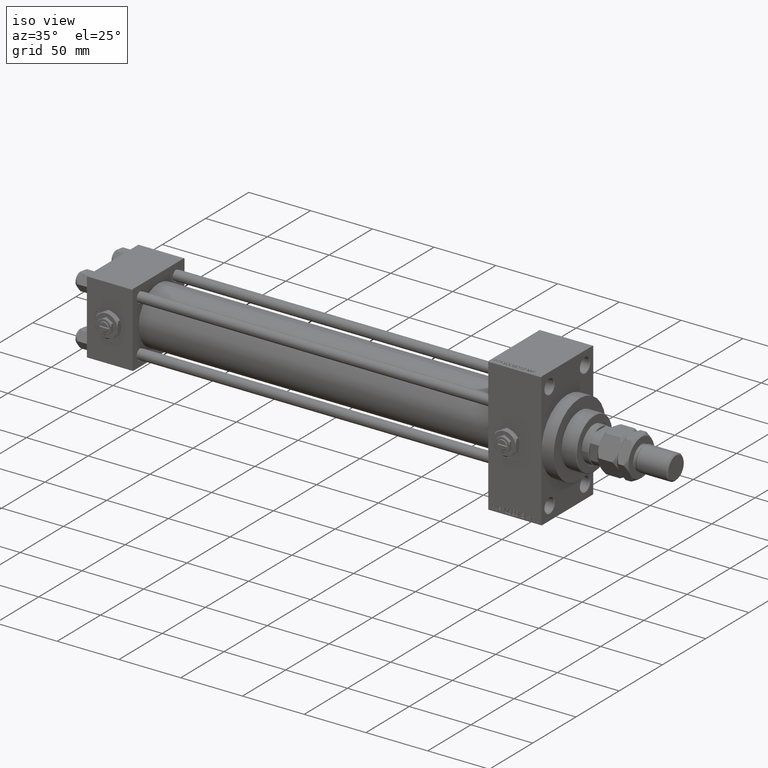
[diagram: clean part render]
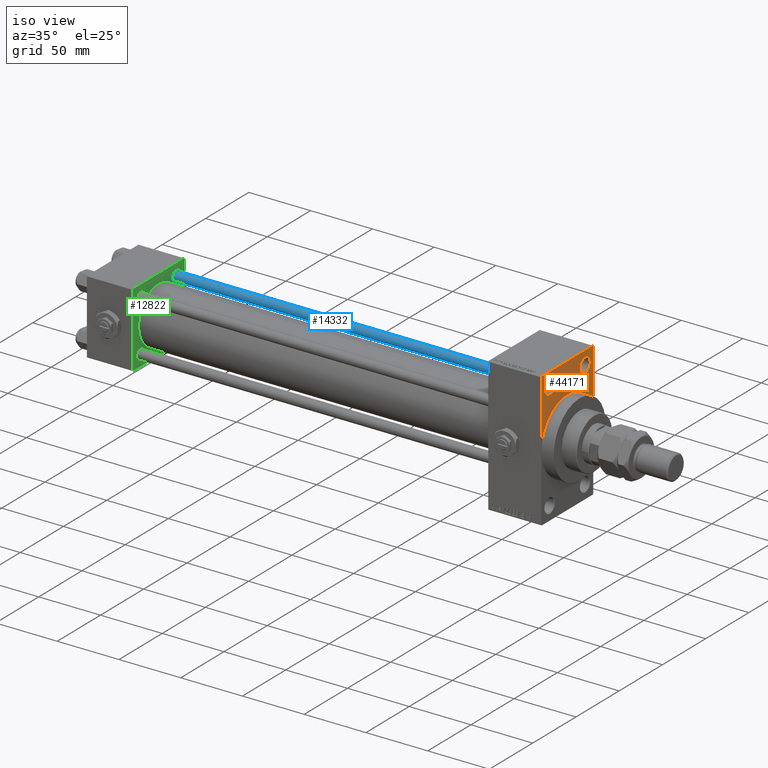
[diagram: same view with three faces highlighted in distinct colors, each labeled with its STEP entity id]
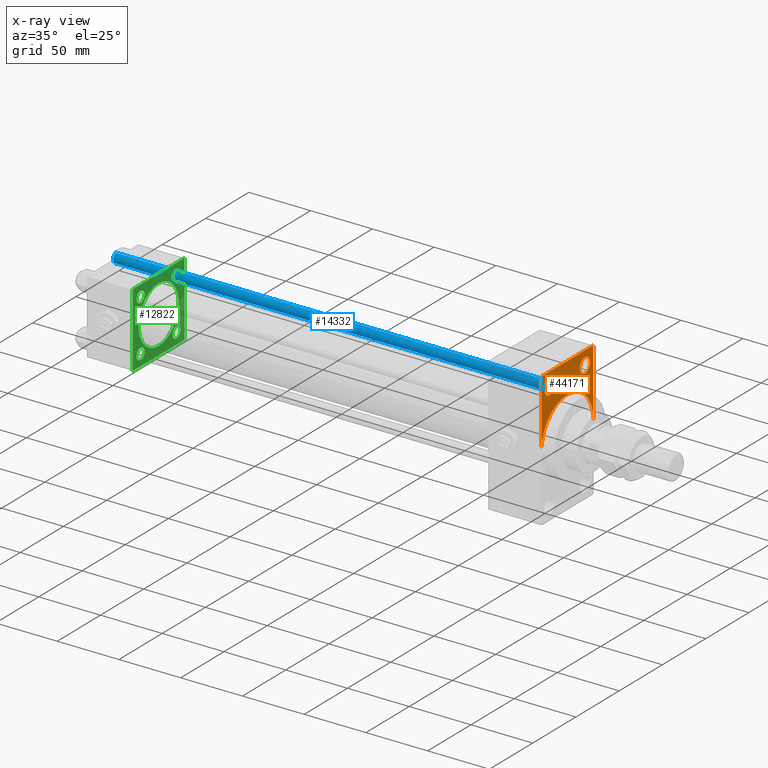
[diagram: x-ray of the same camera — body ghosted, the three highlighted faces saturated]
A machine part, iso view with three faces highlighted in distinct colors.
The next image is the same camera in x-ray (body ghosted, the three faces saturated) — at least one of them is partly hidden behind the body in this view.
Their STEP definitions:

[orange] entity #44171 — the highlighted planar face has unit normal (-1, 0, 0).
#1403 = EDGE_LOOP ( 'NONE', ( #43630, #48070 ) ) ;
#1651 = CARTESIAN_POINT ( 'NONE',  ( 367.9999999999999432, 20.50000000000000000, 43.50000000000000000 ) ) ;
#2362 = CIRCLE ( 'NONE', #40150, 6.000000000000005329 ) ;
#3884 = EDGE_CURVE ( 'NONE', #39450, #22870, #2362, .T. ) ;
#4272 = CARTESIAN_POINT ( 'NONE',  ( 367.9999999999999432, -20.50000000000000000, 43.50000000000000000 ) ) ;
#5525 = EDGE_CURVE ( 'NONE', #12400, #21321, #32805, .T. ) ;
#6338 = FACE_BOUND ( 'NONE', #49965, .T. ) ;
#7973 = DIRECTION ( 'NONE',  ( 0.000000000000000000, -0.7071067811865081598, 0.7071067811865868746 ) ) ;
#9031 = EDGE_CURVE ( 'NONE', #34238, #20882, #14887, .T. ) ;
#10205 = EDGE_CURVE ( 'NONE', #15271, #17942, #32111, .T. ) ;
#10575 = CIRCLE ( 'NONE', #18816, 30.00000000000000000 ) ;
#10656 = CIRCLE ( 'NONE', #39434, 6.000000000000005329 ) ;
#10881 = DIRECTION ( 'NONE',  ( 0.000000000000000000, 0.000000000000000000, -1.000000000000000000 ) ) ;
#11335 = LINE ( 'NONE', #30626, #13045 ) ;
#12063 = EDGE_CURVE ( 'NONE', #20882, #17942, #10575, .T. ) ;
#12346 = EDGE_CURVE ( 'NONE', #18379, #27286, #11335, .T. ) ;
#12400 = VERTEX_POINT ( 'NONE', #36272 ) ;
#12742 = CARTESIAN_POINT ( 'NONE',  ( 367.9999999999999432, 20.50000000000000000, 49.50000000000000000 ) ) ;
#12817 = CARTESIAN_POINT ( 'NONE',  ( 367.9999999999999432, -30.00000000000000000, 54.50000000000000000 ) ) ;
#12887 = AXIS2_PLACEMENT_3D ( 'NONE', #41603, #22046, #37746 ) ;
#12967 = VECTOR ( 'NONE', #40340, 1000.000000000000000 ) ;
#13045 = VECTOR ( 'NONE', #7973, 1000.000000000000000 ) ;
#13953 = VECTOR ( 'NONE', #35630, 1000.000000000000000 ) ;
#14148 = DIRECTION ( 'NONE',  ( 0.000000000000000000, 0.000000000000000000, -1.000000000000000000 ) ) ;
#14215 = DIRECTION ( 'NONE',  ( 0.000000000000000000, 0.000000000000000000, 1.000000000000000000 ) ) ;
#14887 = CIRCLE ( 'NONE', #28712, 30.00000000000000000 ) ;
#15271 = VERTEX_POINT ( 'NONE', #28234 ) ;
#15391 = ORIENTED_EDGE ( 'NONE', *, *, #10205, .T. ) ;
#16213 = CARTESIAN_POINT ( 'NONE',  ( 367.9999999999999432, 29.99999999999999645, 54.49999999999999289 ) ) ;
#17819 = LINE ( 'NONE', #22167, #35291 ) ;
#17892 = DIRECTION ( 'NONE',  ( 0.000000000000000000, 0.000000000000000000, 1.000000000000000000 ) ) ;
#17942 = VERTEX_POINT ( 'NONE', #21591 ) ;
#18379 = VERTEX_POINT ( 'NONE', #40702 ) ;
#18816 = AXIS2_PLACEMENT_3D ( 'NONE', #42277, #31711, #10881 ) ;
#20882 = VERTEX_POINT ( 'NONE', #24919 ) ;
#20978 = CARTESIAN_POINT ( 'NONE',  ( 367.9999999999999432, -20.50000000000000000, 43.50000000000000000 ) ) ;
#21321 = VERTEX_POINT ( 'NONE', #26255 ) ;
#21591 = CARTESIAN_POINT ( 'NONE',  ( 367.9999999999999432, -30.00000000000000000, 0.000000000000000000 ) ) ;
#21615 = CARTESIAN_POINT ( 'NONE',  ( 367.9999999999999432, 0.000000000000000000, 0.000000000000000000 ) ) ;
#21863 = DIRECTION ( 'NONE',  ( 1.000000000000000000, 0.000000000000000000, 0.000000000000000000 ) ) ;
#21962 = EDGE_CURVE ( 'NONE', #45151, #15271, #17819, .T. ) ;
#22046 = DIRECTION ( 'NONE',  ( -1.000000000000000000, 0.000000000000000000, -0.000000000000000000 ) ) ;
#22167 = CARTESIAN_POINT ( 'NONE',  ( 367.9999999999999432, -30.00000000000000000, 53.99999999999988631 ) ) ;
#22870 = VERTEX_POINT ( 'NONE', #12742 ) ;
#24417 = LINE ( 'NONE', #16213, #48810 ) ;
#24806 = DIRECTION ( 'NONE',  ( -1.000000000000000000, 0.000000000000000000, -0.000000000000000000 ) ) ;
#24919 = CARTESIAN_POINT ( 'NONE',  ( 367.9999999999999432, 0.000000000000000000, 30.00000000000000000 ) ) ;
#25320 = ORIENTED_EDGE ( 'NONE', *, *, #25904, .T. ) ;
#25360 = ORIENTED_EDGE ( 'NONE', *, *, #5525, .T. ) ;
#25902 = PLANE ( 'NONE',  #12887 ) ;
#25904 = EDGE_CURVE ( 'NONE', #21321, #12400, #10656, .T. ) ;
#26159 = EDGE_CURVE ( 'NONE', #27286, #45151, #46711, .T. ) ;
#26255 = CARTESIAN_POINT ( 'NONE',  ( 367.9999999999999432, -20.50000000000000000, 37.49999999999999289 ) ) ;
#26804 = CARTESIAN_POINT ( 'NONE',  ( 367.9999999999999432, -29.49999999999994671, 54.50000000000000000 ) ) ;
#27286 = VERTEX_POINT ( 'NONE', #43561 ) ;
#27803 = EDGE_CURVE ( 'NONE', #22870, #39450, #30449, .T. ) ;
#28234 = CARTESIAN_POINT ( 'NONE',  ( 367.9999999999999432, -30.00000000000000000, 53.99999999999988631 ) ) ;
#28712 = AXIS2_PLACEMENT_3D ( 'NONE', #21615, #21863, #14148 ) ;
#29768 = FACE_OUTER_BOUND ( 'NONE', #30421, .T. ) ;
#30421 = EDGE_LOOP ( 'NONE', ( #36506, #38895, #15391, #46290, #33714, #39499, #47640 ) ) ;
#30449 = CIRCLE ( 'NONE', #38658, 6.000000000000005329 ) ;
#30626 = CARTESIAN_POINT ( 'NONE',  ( 367.9999999999999432, 29.50000000000004974, 54.49999999999999289 ) ) ;
#31711 = DIRECTION ( 'NONE',  ( 1.000000000000000000, 0.000000000000000000, 0.000000000000000000 ) ) ;
#32111 = LINE ( 'NONE', #12817, #12967 ) ;
#32805 = CIRCLE ( 'NONE', #42732, 6.000000000000005329 ) ;
#33641 = FACE_BOUND ( 'NONE', #1403, .T. ) ;
#33714 = ORIENTED_EDGE ( 'NONE', *, *, #9031, .F. ) ;
#34238 = VERTEX_POINT ( 'NONE', #36251 ) ;
#35243 = EDGE_CURVE ( 'NONE', #18379, #34238, #24417, .T. ) ;
#35291 = VECTOR ( 'NONE', #37108, 1000.000000000000000 ) ;
#35630 = DIRECTION ( 'NONE',  ( 0.000000000000000000, -1.000000000000000000, 1.156482317317871478E-16 ) ) ;
#35924 = DIRECTION ( 'NONE',  ( 0.000000000000000000, 0.000000000000000000, 1.000000000000000000 ) ) ;
#36251 = CARTESIAN_POINT ( 'NONE',  ( 367.9999999999999432, 30.00000000000000000, 0.000000000000000000 ) ) ;
#36272 = CARTESIAN_POINT ( 'NONE',  ( 367.9999999999999432, -20.50000000000000000, 49.50000000000000000 ) ) ;
#36506 = ORIENTED_EDGE ( 'NONE', *, *, #26159, .T. ) ;
#37108 = DIRECTION ( 'NONE',  ( -0.000000000000000000, -0.7071067811865058284, -0.7071067811865892061 ) ) ;
#37746 = DIRECTION ( 'NONE',  ( -0.000000000000000000, 0.000000000000000000, 1.000000000000000000 ) ) ;
#37874 = DIRECTION ( 'NONE',  ( -1.000000000000000000, 0.000000000000000000, -0.000000000000000000 ) ) ;
#38658 = AXIS2_PLACEMENT_3D ( 'NONE', #49468, #37874, #14215 ) ;
#38895 = ORIENTED_EDGE ( 'NONE', *, *, #21962, .T. ) ;
#39434 = AXIS2_PLACEMENT_3D ( 'NONE', #4272, #47527, #35924 ) ;
#39450 = VERTEX_POINT ( 'NONE', #40228 ) ;
#39499 = ORIENTED_EDGE ( 'NONE', *, *, #35243, .F. ) ;
#39997 = DIRECTION ( 'NONE',  ( 0.000000000000000000, 0.000000000000000000, 1.000000000000000000 ) ) ;
#40150 = AXIS2_PLACEMENT_3D ( 'NONE', #1651, #24806, #39997 ) ;
#40228 = CARTESIAN_POINT ( 'NONE',  ( 367.9999999999999432, 20.50000000000000000, 37.49999999999999289 ) ) ;
#40340 = DIRECTION ( 'NONE',  ( 0.000000000000000000, 0.000000000000000000, -1.000000000000000000 ) ) ;
#40702 = CARTESIAN_POINT ( 'NONE',  ( 367.9999999999999432, 29.99999999999999645, 53.99999999999999289 ) ) ;
#41603 = CARTESIAN_POINT ( 'NONE',  ( 367.9999999999999432, 0.000000000000000000, 0.000000000000000000 ) ) ;
#42277 = CARTESIAN_POINT ( 'NONE',  ( 367.9999999999999432, 0.000000000000000000, 0.000000000000000000 ) ) ;
#42732 = AXIS2_PLACEMENT_3D ( 'NONE', #20978, #45430, #17892 ) ;
#43561 = CARTESIAN_POINT ( 'NONE',  ( 367.9999999999999432, 29.50000000000004974, 54.49999999999999289 ) ) ;
#43630 = ORIENTED_EDGE ( 'NONE', *, *, #3884, .T. ) ;
#44171 = ADVANCED_FACE ( 'NONE', ( #6338, #33641, #29768 ), #25902, .F. ) ;
#45151 = VERTEX_POINT ( 'NONE', #26804 ) ;
#45430 = DIRECTION ( 'NONE',  ( -1.000000000000000000, 0.000000000000000000, -0.000000000000000000 ) ) ;
#46290 = ORIENTED_EDGE ( 'NONE', *, *, #12063, .F. ) ;
#46711 = LINE ( 'NONE', #47223, #13953 ) ;
#47223 = CARTESIAN_POINT ( 'NONE',  ( 367.9999999999999432, 29.99999999999999645, 54.49999999999999289 ) ) ;
#47527 = DIRECTION ( 'NONE',  ( -1.000000000000000000, 0.000000000000000000, -0.000000000000000000 ) ) ;
#47612 = DIRECTION ( 'NONE',  ( 0.000000000000000000, 0.000000000000000000, -1.000000000000000000 ) ) ;
#47640 = ORIENTED_EDGE ( 'NONE', *, *, #12346, .T. ) ;
#48070 = ORIENTED_EDGE ( 'NONE', *, *, #27803, .T. ) ;
#48810 = VECTOR ( 'NONE', #47612, 1000.000000000000000 ) ;
#49468 = CARTESIAN_POINT ( 'NONE',  ( 367.9999999999999432, 20.50000000000000000, 43.50000000000000000 ) ) ;
#49965 = EDGE_LOOP ( 'NONE', ( #25320, #25360 ) ) ;

[blue] entity #14332 — the highlighted cylindrical surface (edge-blend (fillet) strip) has radius 4 mm, axis along (-1, -0, 0).
#6041 = CARTESIAN_POINT ( 'NONE',  ( -4.000000000000000000, 0.000000000000000000, 0.5000000000000004441 ) ) ;
#6139 = DIRECTION ( 'NONE',  ( -1.000000000000000000, 0.000000000000000000, 0.000000000000000000 ) ) ;
#7825 = CARTESIAN_POINT ( 'NONE',  ( 4.000000000000000000, 4.898587196589412829E-16, 0.5000000000000004441 ) ) ;
#7914 = DIRECTION ( 'NONE',  ( 1.000000000000000000, 0.000000000000000000, 0.000000000000000000 ) ) ;
#9074 = AXIS2_PLACEMENT_3D ( 'NONE', #37041, #13124, #6139 ) ;
#9806 = DIRECTION ( 'NONE',  ( -0.000000000000000000, -0.000000000000000000, -1.000000000000000000 ) ) ;
#11294 = EDGE_CURVE ( 'NONE', #16237, #45612, #21893, .T. ) ;
#13124 = DIRECTION ( 'NONE',  ( -0.000000000000000000, -0.000000000000000000, -1.000000000000000000 ) ) ;
#14332 = ADVANCED_FACE ( 'NONE', ( #29312 ), #21598, .T. ) ;
#15886 = LINE ( 'NONE', #43410, #25463 ) ;
#16237 = VERTEX_POINT ( 'NONE', #38001 ) ;
#17432 = CARTESIAN_POINT ( 'NONE',  ( 4.000000000000000000, 4.898587196589412829E-16, 351.5000000000000000 ) ) ;
#18242 = VERTEX_POINT ( 'NONE', #17432 ) ;
#19765 = DIRECTION ( 'NONE',  ( 0.000000000000000000, 0.000000000000000000, -1.000000000000000000 ) ) ;
#19945 = VERTEX_POINT ( 'NONE', #7825 ) ;
#21034 = DIRECTION ( 'NONE',  ( 1.000000000000000000, 0.000000000000000000, 0.000000000000000000 ) ) ;
#21598 = CYLINDRICAL_SURFACE ( 'NONE', #9074, 4.000000000000000000 ) ;
#21893 = LINE ( 'NONE', #30114, #31106 ) ;
#22504 = EDGE_CURVE ( 'NONE', #18242, #16237, #33565, .T. ) ;
#22914 = ORIENTED_EDGE ( 'NONE', *, *, #22504, .T. ) ;
#25463 = VECTOR ( 'NONE', #39038, 1000.000000000000000 ) ;
#26445 = ORIENTED_EDGE ( 'NONE', *, *, #26612, .F. ) ;
#26612 = EDGE_CURVE ( 'NONE', #18242, #19945, #15886, .T. ) ;
#26797 = ORIENTED_EDGE ( 'NONE', *, *, #27339, .T. ) ;
#27339 = EDGE_CURVE ( 'NONE', #45612, #19945, #36189, .T. ) ;
#28799 = AXIS2_PLACEMENT_3D ( 'NONE', #28998, #32868, #21034 ) ;
#28998 = CARTESIAN_POINT ( 'NONE',  ( 0.000000000000000000, 0.000000000000000000, 0.5000000000000004441 ) ) ;
#29312 = FACE_OUTER_BOUND ( 'NONE', #39458, .T. ) ;
#30114 = CARTESIAN_POINT ( 'NONE',  ( -4.000000000000000000, 0.000000000000000000, 352.0000000000000000 ) ) ;
#31081 = AXIS2_PLACEMENT_3D ( 'NONE', #39825, #19765, #7914 ) ;
#31106 = VECTOR ( 'NONE', #9806, 1000.000000000000000 ) ;
#32868 = DIRECTION ( 'NONE',  ( -0.000000000000000000, -0.000000000000000000, 1.000000000000000000 ) ) ;
#33565 = CIRCLE ( 'NONE', #31081, 4.000000000000000000 ) ;
#36189 = CIRCLE ( 'NONE', #28799, 4.000000000000000000 ) ;
#37041 = CARTESIAN_POINT ( 'NONE',  ( 0.000000000000000000, 0.000000000000000000, 352.0000000000000000 ) ) ;
#38001 = CARTESIAN_POINT ( 'NONE',  ( -4.000000000000000000, 0.000000000000000000, 351.5000000000000000 ) ) ;
#39038 = DIRECTION ( 'NONE',  ( -0.000000000000000000, -0.000000000000000000, -1.000000000000000000 ) ) ;
#39458 = EDGE_LOOP ( 'NONE', ( #26445, #22914, #39559, #26797 ) ) ;
#39559 = ORIENTED_EDGE ( 'NONE', *, *, #11294, .T. ) ;
#39825 = CARTESIAN_POINT ( 'NONE',  ( 0.000000000000000000, 0.000000000000000000, 351.5000000000000000 ) ) ;
#43410 = CARTESIAN_POINT ( 'NONE',  ( 4.000000000000000000, 4.898587196589412829E-16, 352.0000000000000000 ) ) ;
#45612 = VERTEX_POINT ( 'NONE', #6041 ) ;

[green] entity #12822 — the highlighted planar face has unit normal (-1, 0, 0).
#293 = CARTESIAN_POINT ( 'NONE',  ( 37.00000000000000000, -30.00000000000000000, 29.49999999999999289 ) ) ;
#491 = EDGE_CURVE ( 'NONE', #43226, #2012, #21935, .T. ) ;
#823 = CARTESIAN_POINT ( 'NONE',  ( 36.99999999999997868, -2.602085213965210642E-15, 23.00000000000000000 ) ) ;
#1237 = AXIS2_PLACEMENT_3D ( 'NONE', #36145, #25322, #25070 ) ;
#1602 = CARTESIAN_POINT ( 'NONE',  ( 37.00000000000000000, -20.84999999999999076, -16.35000000000005471 ) ) ;
#1664 = EDGE_CURVE ( 'NONE', #29744, #20437, #27736, .T. ) ;
#1757 = DIRECTION ( 'NONE',  ( -0.000000000000000000, -0.7071067811865474617, -0.7071067811865474617 ) ) ;
#1847 = DIRECTION ( 'NONE',  ( 0.000000000000000000, 0.000000000000000000, 1.000000000000000000 ) ) ;
#2012 = VERTEX_POINT ( 'NONE', #34853 ) ;
#2104 = DIRECTION ( 'NONE',  ( 0.000000000000000000, 0.000000000000000000, 1.000000000000000000 ) ) ;
#2459 = ORIENTED_EDGE ( 'NONE', *, *, #11927, .T. ) ;
#2857 = CARTESIAN_POINT ( 'NONE',  ( 36.99999999999997868, -2.602085213965210642E-15, 0.000000000000000000 ) ) ;
#2904 = CARTESIAN_POINT ( 'NONE',  ( 37.00000000000000000, -20.84999999999999076, -20.85000000000000497 ) ) ;
#4300 = EDGE_CURVE ( 'NONE', #11190, #44437, #9779, .T. ) ;
#4659 = DIRECTION ( 'NONE',  ( 0.000000000000000000, -0.7071067811865474617, 0.7071067811865474617 ) ) ;
#5735 = EDGE_CURVE ( 'NONE', #47529, #14572, #21350, .T. ) ;
#6076 = FACE_BOUND ( 'NONE', #37829, .T. ) ;
#6250 = DIRECTION ( 'NONE',  ( 0.000000000000000000, 0.000000000000000000, 1.000000000000000000 ) ) ;
#6280 = LINE ( 'NONE', #37186, #33409 ) ;
#6745 = CARTESIAN_POINT ( 'NONE',  ( 37.00000000000000000, 29.99999999999999289, -29.50000000000000000 ) ) ;
#6757 = DIRECTION ( 'NONE',  ( -1.000000000000000000, 0.000000000000000000, -0.000000000000000000 ) ) ;
#6777 = EDGE_LOOP ( 'NONE', ( #32566, #32863, #20694, #23293, #17026, #31313, #7937, #21794 ) ) ;
#7465 = DIRECTION ( 'NONE',  ( -0.000000000000000000, 0.7071067811865574537, 0.7071067811865376918 ) ) ;
#7778 = CARTESIAN_POINT ( 'NONE',  ( 37.00000000000000000, 29.49999999999999289, 30.00000000000000000 ) ) ;
#7937 = ORIENTED_EDGE ( 'NONE', *, *, #49449, .T. ) ;
#7988 = CARTESIAN_POINT ( 'NONE',  ( 37.00000000000000000, -29.50000000000001066, -30.00000000000000711 ) ) ;
#8246 = DIRECTION ( 'NONE',  ( 0.000000000000000000, 0.7071067811865474617, -0.7071067811865474617 ) ) ;
#8291 = EDGE_LOOP ( 'NONE', ( #2459, #48654 ) ) ;
#8444 = VECTOR ( 'NONE', #8246, 1000.000000000000114 ) ;
#9041 = CARTESIAN_POINT ( 'NONE',  ( 37.00000000000000000, 20.84999999999999787, -25.34999999999994813 ) ) ;
#9187 = VECTOR ( 'NONE', #7465, 999.9999999999998863 ) ;
#9345 = CIRCLE ( 'NONE', #40560, 4.499999999999948486 ) ;
#9636 = EDGE_CURVE ( 'NONE', #17567, #16527, #6280, .T. ) ;
#9779 = CIRCLE ( 'NONE', #43471, 23.00000000000000000 ) ;
#11190 = VERTEX_POINT ( 'NONE', #823 ) ;
#11286 = CARTESIAN_POINT ( 'NONE',  ( 37.00000000000000000, 20.84999999999999787, -20.85000000000000142 ) ) ;
#11788 = CARTESIAN_POINT ( 'NONE',  ( 37.00000000000000000, -20.84999999999999076, 16.35000000000005471 ) ) ;
#11799 = DIRECTION ( 'NONE',  ( -1.000000000000000000, 0.000000000000000000, -0.000000000000000000 ) ) ;
#11927 = EDGE_CURVE ( 'NONE', #14572, #47529, #50888, .T. ) ;
#12106 = CARTESIAN_POINT ( 'NONE',  ( 37.00000000000000000, 29.99999999999999289, -30.00000000000000000 ) ) ;
#12822 = ADVANCED_FACE ( 'NONE', ( #6076, #40828, #33113, #49079, #45224, #48829 ), #41591, .F. ) ;
#13360 = EDGE_LOOP ( 'NONE', ( #22528, #21949 ) ) ;
#13701 = DIRECTION ( 'NONE',  ( 1.000000000000000000, -0.000000000000000000, 0.000000000000000000 ) ) ;
#13824 = DIRECTION ( 'NONE',  ( -1.000000000000000000, 0.000000000000000000, -0.000000000000000000 ) ) ;
#14011 = VECTOR ( 'NONE', #19574, 1000.000000000000000 ) ;
#14193 = CIRCLE ( 'NONE', #42943, 4.499999999999948486 ) ;
#14302 = EDGE_CURVE ( 'NONE', #16978, #15441, #47377, .T. ) ;
#14498 = DIRECTION ( 'NONE',  ( -1.000000000000000000, 0.000000000000000000, -0.000000000000000000 ) ) ;
#14520 = LINE ( 'NONE', #14777, #34773 ) ;
#14572 = VERTEX_POINT ( 'NONE', #11788 ) ;
#14777 = CARTESIAN_POINT ( 'NONE',  ( 37.00000000000000000, 29.99999999999999289, 30.00000000000000000 ) ) ;
#15035 = DIRECTION ( 'NONE',  ( 0.000000000000000000, 0.000000000000000000, -1.000000000000000000 ) ) ;
#15043 = CARTESIAN_POINT ( 'NONE',  ( 37.00000000000000000, -20.84999999999999076, 20.85000000000000497 ) ) ;
#15441 = VERTEX_POINT ( 'NONE', #41601 ) ;
#15552 = AXIS2_PLACEMENT_3D ( 'NONE', #49755, #14498, #46155 ) ;
#16459 = EDGE_LOOP ( 'NONE', ( #36718, #40035 ) ) ;
#16527 = VERTEX_POINT ( 'NONE', #31437 ) ;
#16978 = VERTEX_POINT ( 'NONE', #19805 ) ;
#17026 = ORIENTED_EDGE ( 'NONE', *, *, #9636, .T. ) ;
#17404 = EDGE_CURVE ( 'NONE', #2012, #43226, #14193, .T. ) ;
#17567 = VERTEX_POINT ( 'NONE', #7778 ) ;
#18453 = EDGE_CURVE ( 'NONE', #44437, #11190, #43707, .T. ) ;
#19521 = AXIS2_PLACEMENT_3D ( 'NONE', #31282, #23553, #47258 ) ;
#19574 = DIRECTION ( 'NONE',  ( 0.000000000000000000, -1.000000000000000000, -1.156482317317871725E-16 ) ) ;
#19805 = CARTESIAN_POINT ( 'NONE',  ( 37.00000000000000000, 29.49999999999997868, -30.00000000000000000 ) ) ;
#20024 = VERTEX_POINT ( 'NONE', #6745 ) ;
#20229 = ORIENTED_EDGE ( 'NONE', *, *, #491, .T. ) ;
#20437 = VERTEX_POINT ( 'NONE', #9041 ) ;
#20694 = ORIENTED_EDGE ( 'NONE', *, *, #32796, .F. ) ;
#21208 = ORIENTED_EDGE ( 'NONE', *, *, #18453, .F. ) ;
#21303 = AXIS2_PLACEMENT_3D ( 'NONE', #32854, #13824, #22031 ) ;
#21350 = CIRCLE ( 'NONE', #45215, 4.499999999999948486 ) ;
#21794 = ORIENTED_EDGE ( 'NONE', *, *, #32305, .T. ) ;
#21935 = CIRCLE ( 'NONE', #23575, 4.499999999999948486 ) ;
#21949 = ORIENTED_EDGE ( 'NONE', *, *, #49996, .T. ) ;
#22021 = VERTEX_POINT ( 'NONE', #40710 ) ;
#22031 = DIRECTION ( 'NONE',  ( -0.000000000000000000, 0.000000000000000000, 1.000000000000000000 ) ) ;
#22076 = ORIENTED_EDGE ( 'NONE', *, *, #4300, .F. ) ;
#22216 = VERTEX_POINT ( 'NONE', #293 ) ;
#22528 = ORIENTED_EDGE ( 'NONE', *, *, #42020, .T. ) ;
#23293 = ORIENTED_EDGE ( 'NONE', *, *, #40595, .T. ) ;
#23296 = VECTOR ( 'NONE', #46961, 1000.000000000000000 ) ;
#23553 = DIRECTION ( 'NONE',  ( -1.000000000000000000, 0.000000000000000000, -0.000000000000000000 ) ) ;
#23575 = AXIS2_PLACEMENT_3D ( 'NONE', #27227, #28229, #43946 ) ;
#24273 = LINE ( 'NONE', #35371, #23296 ) ;
#25070 = DIRECTION ( 'NONE',  ( 0.000000000000000000, 0.000000000000000000, 1.000000000000000000 ) ) ;
#25322 = DIRECTION ( 'NONE',  ( -1.000000000000000000, 0.000000000000000000, -0.000000000000000000 ) ) ;
#26739 = CIRCLE ( 'NONE', #1237, 4.499999999999948486 ) ;
#27227 = CARTESIAN_POINT ( 'NONE',  ( 37.00000000000000000, -20.84999999999999076, -20.85000000000000497 ) ) ;
#27556 = LINE ( 'NONE', #7988, #8444 ) ;
#27736 = CIRCLE ( 'NONE', #19521, 4.499999999999948486 ) ;
#28013 = CARTESIAN_POINT ( 'NONE',  ( 37.00000000000000000, -20.84999999999999076, 25.34999999999995168 ) ) ;
#28229 = DIRECTION ( 'NONE',  ( -1.000000000000000000, 0.000000000000000000, -0.000000000000000000 ) ) ;
#28529 = EDGE_LOOP ( 'NONE', ( #22076, #21208 ) ) ;
#28812 = CARTESIAN_POINT ( 'NONE',  ( 37.00000000000000000, 20.84999999999999787, 16.35000000000005116 ) ) ;
#29744 = VERTEX_POINT ( 'NONE', #50055 ) ;
#30292 = CARTESIAN_POINT ( 'NONE',  ( 37.00000000000000000, 20.84999999999999787, 20.85000000000000142 ) ) ;
#30376 = EDGE_CURVE ( 'NONE', #16978, #20024, #33998, .T. ) ;
#30719 = DIRECTION ( 'NONE',  ( -1.000000000000000000, 0.000000000000000000, -0.000000000000000000 ) ) ;
#31282 = CARTESIAN_POINT ( 'NONE',  ( 37.00000000000000000, 20.84999999999999787, -20.85000000000000142 ) ) ;
#31313 = ORIENTED_EDGE ( 'NONE', *, *, #46357, .T. ) ;
#31437 = CARTESIAN_POINT ( 'NONE',  ( 37.00000000000000000, -29.49999999999998579, 29.99999999999999289 ) ) ;
#32305 = EDGE_CURVE ( 'NONE', #42752, #15441, #27556, .T. ) ;
#32566 = ORIENTED_EDGE ( 'NONE', *, *, #14302, .F. ) ;
#32796 = EDGE_CURVE ( 'NONE', #22021, #20024, #14520, .T. ) ;
#32854 = CARTESIAN_POINT ( 'NONE',  ( 37.00000000000000000, 0.000000000000000000, 0.000000000000000000 ) ) ;
#32863 = ORIENTED_EDGE ( 'NONE', *, *, #30376, .T. ) ;
#33113 = FACE_BOUND ( 'NONE', #8291, .T. ) ;
#33409 = VECTOR ( 'NONE', #41049, 1000.000000000000000 ) ;
#33611 = VERTEX_POINT ( 'NONE', #36378 ) ;
#33998 = LINE ( 'NONE', #35010, #9187 ) ;
#34209 = CIRCLE ( 'NONE', #39155, 4.499999999999948486 ) ;
#34773 = VECTOR ( 'NONE', #15035, 1000.000000000000000 ) ;
#34853 = CARTESIAN_POINT ( 'NONE',  ( 37.00000000000000000, -20.84999999999999076, -25.34999999999995168 ) ) ;
#34969 = DIRECTION ( 'NONE',  ( 0.000000000000000000, 0.000000000000000000, 1.000000000000000000 ) ) ;
#35010 = CARTESIAN_POINT ( 'NONE',  ( 37.00000000000000000, 29.99999999999999289, -29.50000000000000000 ) ) ;
#35146 = ORIENTED_EDGE ( 'NONE', *, *, #17404, .T. ) ;
#35371 = CARTESIAN_POINT ( 'NONE',  ( 37.00000000000000000, -30.00000000000000000, 29.99999999999999289 ) ) ;
#35459 = CARTESIAN_POINT ( 'NONE',  ( 37.00000000000000000, -30.00000000000000000, -29.50000000000001776 ) ) ;
#35742 = VECTOR ( 'NONE', #4659, 1000.000000000000114 ) ;
#36145 = CARTESIAN_POINT ( 'NONE',  ( 37.00000000000000000, 20.84999999999999787, 20.85000000000000142 ) ) ;
#36149 = VERTEX_POINT ( 'NONE', #28812 ) ;
#36378 = CARTESIAN_POINT ( 'NONE',  ( 37.00000000000000000, 20.84999999999999787, 25.34999999999994813 ) ) ;
#36718 = ORIENTED_EDGE ( 'NONE', *, *, #43896, .T. ) ;
#37186 = CARTESIAN_POINT ( 'NONE',  ( 37.00000000000000000, 29.99999999999999289, 30.00000000000000000 ) ) ;
#37829 = EDGE_LOOP ( 'NONE', ( #35146, #20229 ) ) ;
#38113 = DIRECTION ( 'NONE',  ( 1.000000000000000000, -0.000000000000000000, 0.000000000000000000 ) ) ;
#39155 = AXIS2_PLACEMENT_3D ( 'NONE', #11286, #11799, #34969 ) ;
#39427 = LINE ( 'NONE', #39677, #35742 ) ;
#39677 = CARTESIAN_POINT ( 'NONE',  ( 37.00000000000000000, 29.49999999999999289, 30.00000000000000000 ) ) ;
#40035 = ORIENTED_EDGE ( 'NONE', *, *, #1664, .T. ) ;
#40560 = AXIS2_PLACEMENT_3D ( 'NONE', #30292, #41885, #46772 ) ;
#40595 = EDGE_CURVE ( 'NONE', #22021, #17567, #39427, .T. ) ;
#40710 = CARTESIAN_POINT ( 'NONE',  ( 37.00000000000000000, 29.99999999999999289, 29.50000000000000000 ) ) ;
#40828 = FACE_BOUND ( 'NONE', #16459, .T. ) ;
#41049 = DIRECTION ( 'NONE',  ( 0.000000000000000000, -1.000000000000000000, -1.156482317317871725E-16 ) ) ;
#41591 = PLANE ( 'NONE',  #21303 ) ;
#41601 = CARTESIAN_POINT ( 'NONE',  ( 37.00000000000000000, -29.50000000000000000, -30.00000000000000711 ) ) ;
#41726 = VECTOR ( 'NONE', #1757, 1000.000000000000114 ) ;
#41885 = DIRECTION ( 'NONE',  ( -1.000000000000000000, 0.000000000000000000, -0.000000000000000000 ) ) ;
#42020 = EDGE_CURVE ( 'NONE', #36149, #33611, #26739, .T. ) ;
#42752 = VERTEX_POINT ( 'NONE', #35459 ) ;
#42943 = AXIS2_PLACEMENT_3D ( 'NONE', #2904, #6757, #6250 ) ;
#43226 = VERTEX_POINT ( 'NONE', #1602 ) ;
#43471 = AXIS2_PLACEMENT_3D ( 'NONE', #44845, #38113, #2104 ) ;
#43707 = CIRCLE ( 'NONE', #47828, 23.00000000000000000 ) ;
#43896 = EDGE_CURVE ( 'NONE', #20437, #29744, #34209, .T. ) ;
#43946 = DIRECTION ( 'NONE',  ( 0.000000000000000000, 0.000000000000000000, 1.000000000000000000 ) ) ;
#44437 = VERTEX_POINT ( 'NONE', #48782 ) ;
#44845 = CARTESIAN_POINT ( 'NONE',  ( 36.99999999999997868, -2.602085213965210642E-15, 0.000000000000000000 ) ) ;
#45215 = AXIS2_PLACEMENT_3D ( 'NONE', #15043, #30719, #46443 ) ;
#45224 = FACE_BOUND ( 'NONE', #28529, .T. ) ;
#46155 = DIRECTION ( 'NONE',  ( 0.000000000000000000, 0.000000000000000000, 1.000000000000000000 ) ) ;
#46357 = EDGE_CURVE ( 'NONE', #16527, #22216, #48614, .T. ) ;
#46443 = DIRECTION ( 'NONE',  ( 0.000000000000000000, 0.000000000000000000, 1.000000000000000000 ) ) ;
#46772 = DIRECTION ( 'NONE',  ( 0.000000000000000000, 0.000000000000000000, 1.000000000000000000 ) ) ;
#46961 = DIRECTION ( 'NONE',  ( 0.000000000000000000, 0.000000000000000000, -1.000000000000000000 ) ) ;
#47258 = DIRECTION ( 'NONE',  ( 0.000000000000000000, 0.000000000000000000, 1.000000000000000000 ) ) ;
#47377 = LINE ( 'NONE', #12106, #14011 ) ;
#47529 = VERTEX_POINT ( 'NONE', #28013 ) ;
#47828 = AXIS2_PLACEMENT_3D ( 'NONE', #2857, #13701, #1847 ) ;
#48614 = LINE ( 'NONE', #48869, #41726 ) ;
#48654 = ORIENTED_EDGE ( 'NONE', *, *, #5735, .T. ) ;
#48782 = CARTESIAN_POINT ( 'NONE',  ( 36.99999999999997868, 2.146024240737016609E-16, -23.00000000000000000 ) ) ;
#48829 = FACE_OUTER_BOUND ( 'NONE', #6777, .T. ) ;
#48869 = CARTESIAN_POINT ( 'NONE',  ( 37.00000000000000000, -30.00000000000000000, 29.49999999999999289 ) ) ;
#49079 = FACE_BOUND ( 'NONE', #13360, .T. ) ;
#49449 = EDGE_CURVE ( 'NONE', #22216, #42752, #24273, .T. ) ;
#49755 = CARTESIAN_POINT ( 'NONE',  ( 37.00000000000000000, -20.84999999999999076, 20.85000000000000497 ) ) ;
#49996 = EDGE_CURVE ( 'NONE', #33611, #36149, #9345, .T. ) ;
#50055 = CARTESIAN_POINT ( 'NONE',  ( 37.00000000000000000, 20.84999999999999787, -16.35000000000005116 ) ) ;
#50888 = CIRCLE ( 'NONE', #15552, 4.499999999999948486 ) ;